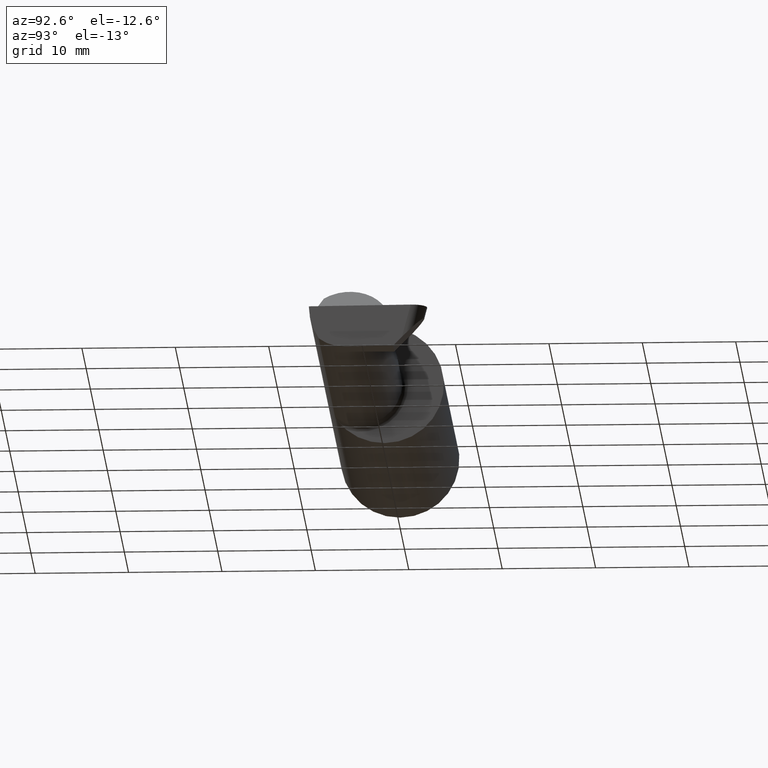
[diagram: clean part render]
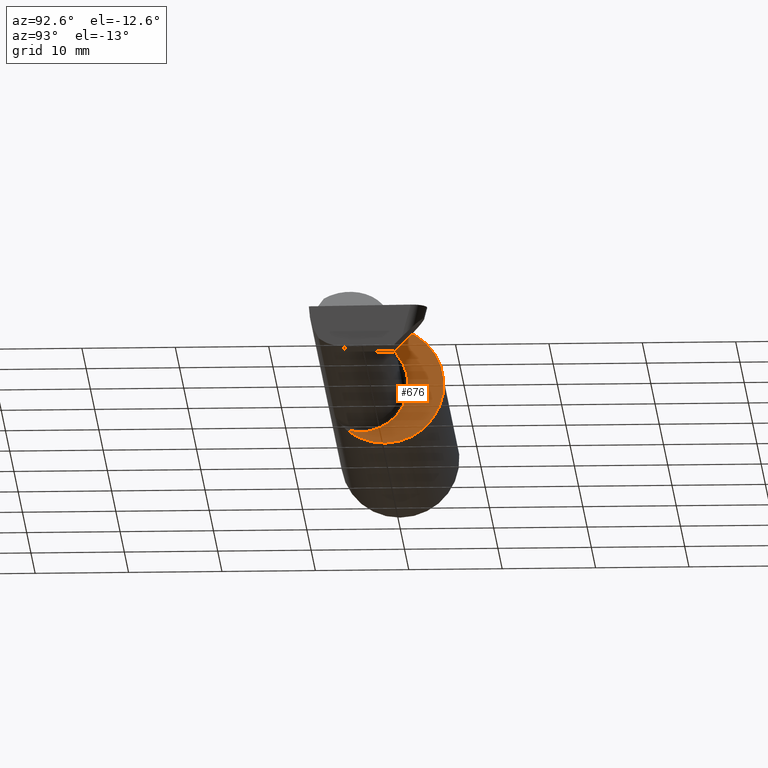
[diagram: same view with one face highlighted and labeled with its STEP entity id]
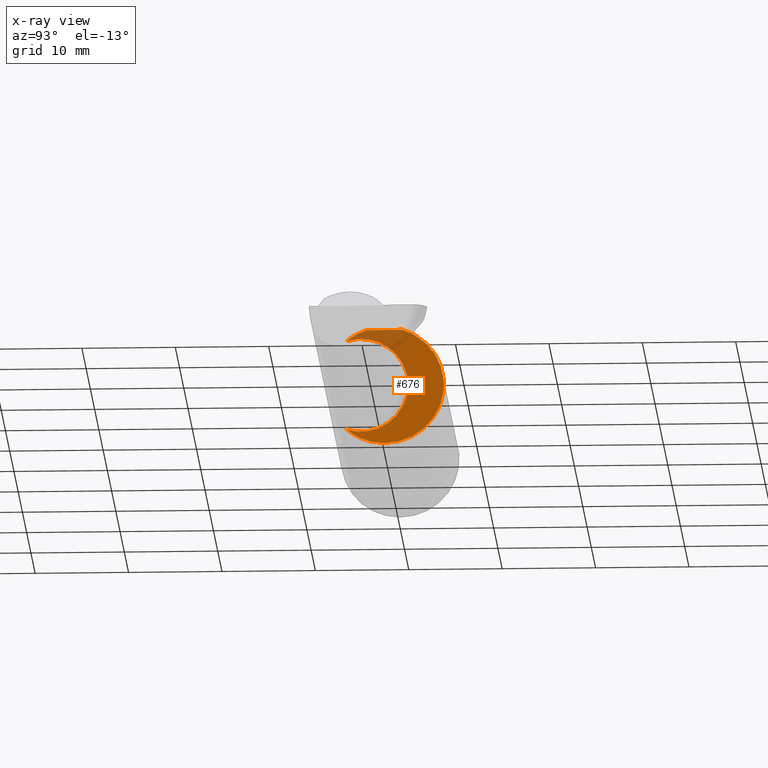
[diagram: x-ray of the same camera — body ghosted, the highlighted face saturated]
A machine part, auxiliary view. The second image highlights one B-rep face of the part: STEP entity #676.
The next image is the same camera in x-ray: the body ghosted, the highlighted face saturated — about 15% of this face is hidden behind the body in this view.
In plain terms, the highlighted planar face has unit normal (1, 0, 0).
Its self-contained STEP definition (entity closure, byte-faithful):
#9 = AXIS2_PLACEMENT_3D ( 'NONE', #137, #246, #566 ) ;
#33 = VECTOR ( 'NONE', #491, 39.37007874015748143 ) ;
#43 = AXIS2_PLACEMENT_3D ( 'NONE', #552, #58, #65 ) ;
#58 = DIRECTION ( 'NONE',  ( -1.000000000000000000, -5.995991820921354631E-17, -0.000000000000000000 ) ) ;
#63 = VERTEX_POINT ( 'NONE', #690 ) ;
#65 = DIRECTION ( 'NONE',  ( 0.000000000000000000, -1.000000000000000000, 0.000000000000000000 ) ) ;
#131 = AXIS2_PLACEMENT_3D ( 'NONE', #176, #386, #606 ) ;
#137 = CARTESIAN_POINT ( 'NONE',  ( 1.450000000000000178, 0.000000000000000000, 0.000000000000000000 ) ) ;
#158 = ORIENTED_EDGE ( 'NONE', *, *, #215, .T. ) ;
#176 = CARTESIAN_POINT ( 'NONE',  ( 1.450000000000000178, 0.2498499999999997945, 0.000000000000000000 ) ) ;
#215 = EDGE_CURVE ( 'NONE', #63, #583, #472, .T. ) ;
#232 = CIRCLE ( 'NONE', #9, 0.2498499999999999888 ) ;
#246 = DIRECTION ( 'NONE',  ( 1.000000000000000000, 5.995991820921354631E-17, 0.000000000000000000 ) ) ;
#251 = CARTESIAN_POINT ( 'NONE',  ( 1.450000000000000178, -0.07650098038587527238, 0.2378499999999998671 ) ) ;
#270 = ORIENTED_EDGE ( 'NONE', *, *, #623, .F. ) ;
#275 = FACE_OUTER_BOUND ( 'NONE', #667, .T. ) ;
#288 = EDGE_CURVE ( 'NONE', #583, #297, #232, .T. ) ;
#297 = VERTEX_POINT ( 'NONE', #450 ) ;
#315 = DIRECTION ( 'NONE',  ( 0.000000000000000000, 1.000000000000000000, 0.000000000000000000 ) ) ;
#332 = PLANE ( 'NONE',  #131 ) ;
#374 = LINE ( 'NONE', #702, #33 ) ;
#386 = DIRECTION ( 'NONE',  ( 1.000000000000000000, 5.995991820921354631E-17, 0.000000000000000000 ) ) ;
#407 = ORIENTED_EDGE ( 'NONE', *, *, #662, .T. ) ;
#428 = AXIS2_PLACEMENT_3D ( 'NONE', #590, #548, #315 ) ;
#450 = CARTESIAN_POINT ( 'NONE',  ( 1.450000000000000178, 0.07650098038587520299, 0.2378499999999998671 ) ) ;
#472 = CIRCLE ( 'NONE', #43, 0.1999999999999999556 ) ;
#491 = DIRECTION ( 'NONE',  ( -5.995991820921354631E-17, 1.000000000000000000, 0.000000000000000000 ) ) ;
#535 = VERTEX_POINT ( 'NONE', #251 ) ;
#538 = ORIENTED_EDGE ( 'NONE', *, *, #288, .T. ) ;
#548 = DIRECTION ( 'NONE',  ( 1.000000000000000000, 5.995991820921354631E-17, 0.000000000000000000 ) ) ;
#552 = CARTESIAN_POINT ( 'NONE',  ( 1.450000000000000178, -0.1008500000000001062, 0.000000000000000000 ) ) ;
#566 = DIRECTION ( 'NONE',  ( 0.000000000000000000, 1.000000000000000000, 0.000000000000000000 ) ) ;
#583 = VERTEX_POINT ( 'NONE', #652 ) ;
#590 = CARTESIAN_POINT ( 'NONE',  ( 1.450000000000000178, 0.000000000000000000, 0.000000000000000000 ) ) ;
#606 = DIRECTION ( 'NONE',  ( -5.995991820921354631E-17, 1.000000000000000000, 0.000000000000000000 ) ) ;
#623 = EDGE_CURVE ( 'NONE', #535, #297, #374, .T. ) ;
#652 = CARTESIAN_POINT ( 'NONE',  ( 1.450000000000000178, -0.1616050818046604332, -0.1905487340154980169 ) ) ;
#659 = CIRCLE ( 'NONE', #428, 0.2498499999999999888 ) ;
#662 = EDGE_CURVE ( 'NONE', #535, #63, #659, .T. ) ;
#667 = EDGE_LOOP ( 'NONE', ( #538, #270, #407, #158 ) ) ;
#676 = ADVANCED_FACE ( 'NONE', ( #275 ), #332, .T. ) ;
#690 = CARTESIAN_POINT ( 'NONE',  ( 1.450000000000000178, -0.1616050818046604332, 0.1905487340154980169 ) ) ;
#702 = CARTESIAN_POINT ( 'NONE',  ( 1.450000000000000178, 0.2498499999999997390, 0.2378499999999998671 ) ) ;